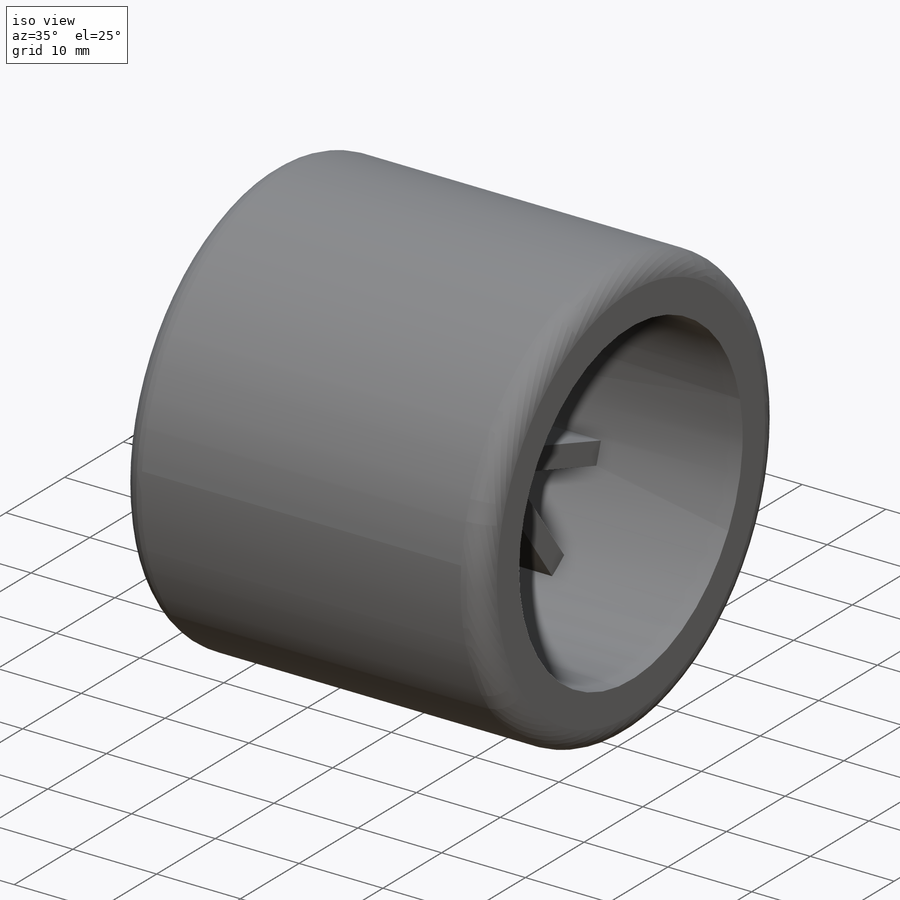
[diagram: iso view]
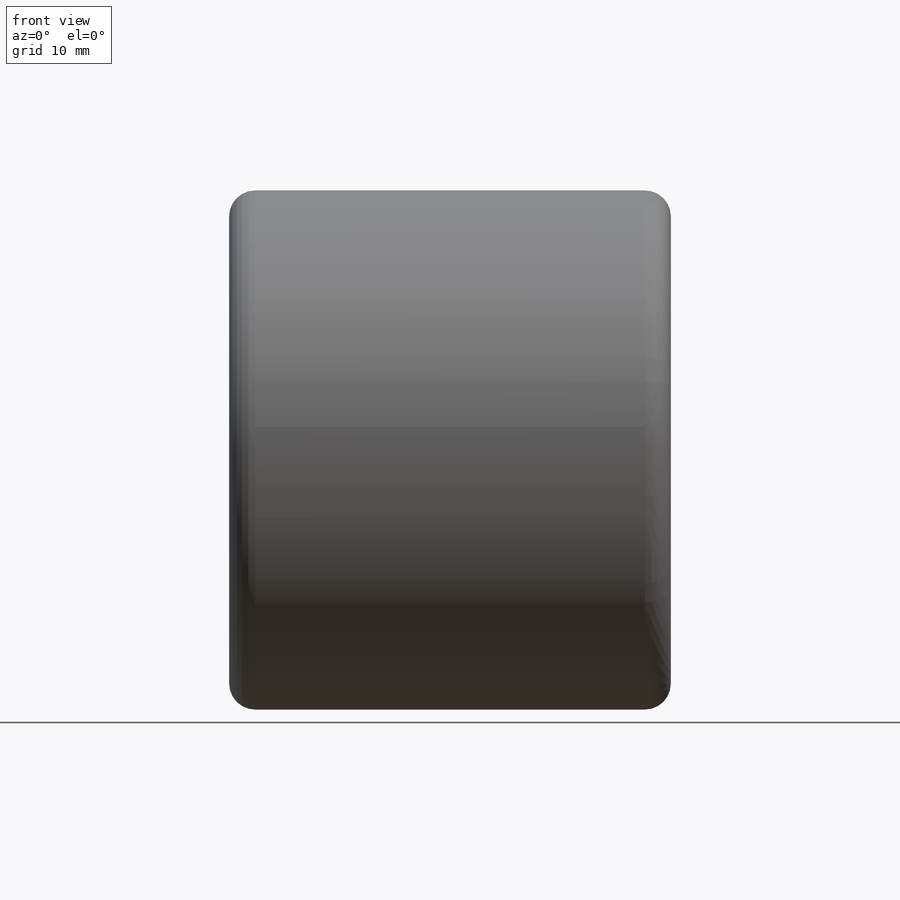
[diagram: front view]
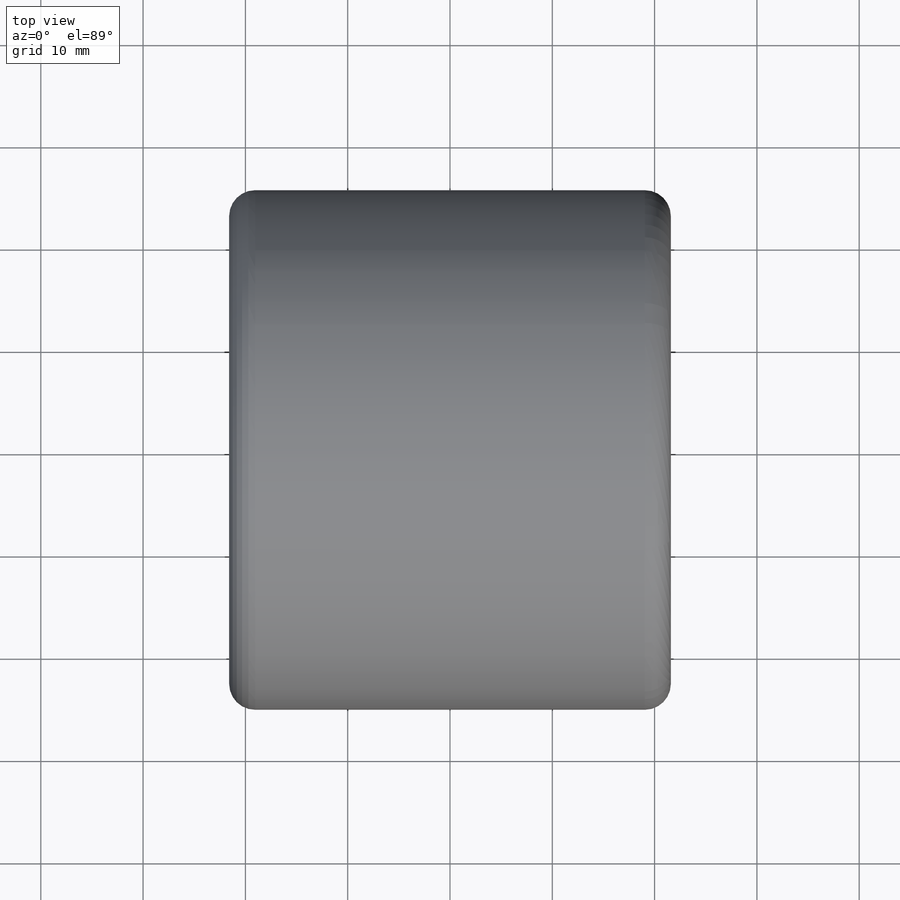
[diagram: top view]
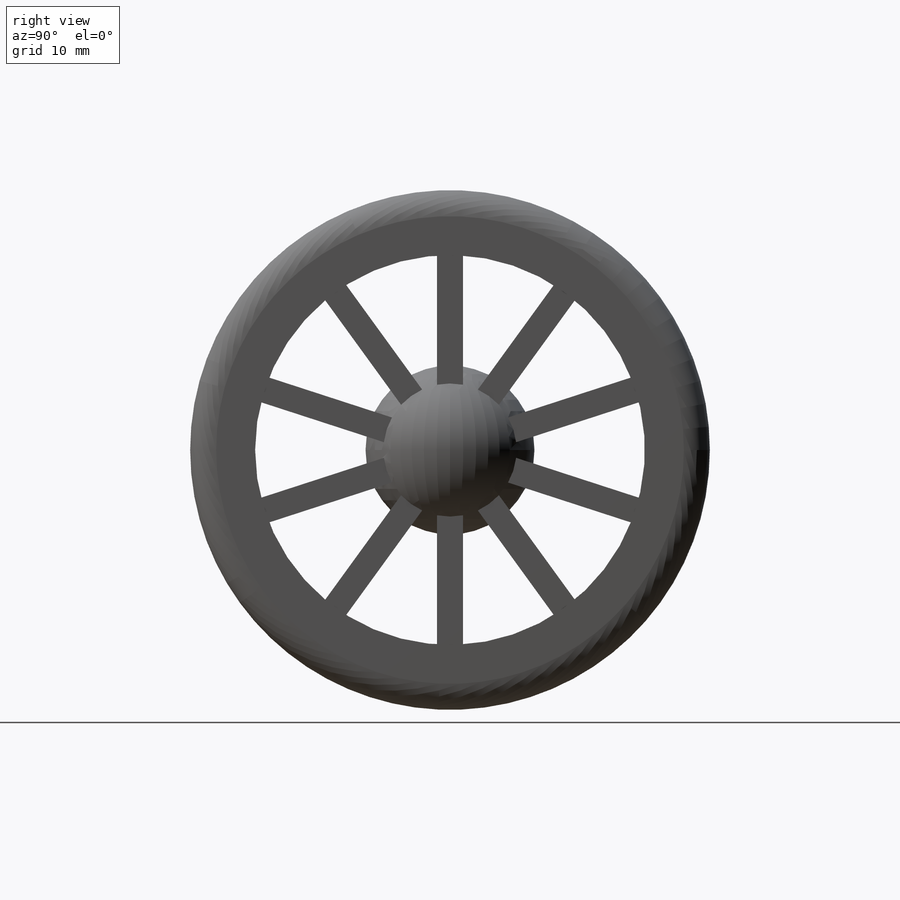
[diagram: right view]
SOLIDWORKS PART (.sldprt)
format: sldprt  version: not decoded by parser v0  size: 307,712 bytes
history: native  units: mm
features: sketch x3, extrude x2, material x1, fillet x1, revolve x1 (+13 scaffold rows collapsed)
feature tree (21):
  scaffold x13  (default folders/planes/origin — collapsed)
  material  "Material <not specified>"
  sketch  "Sketch1"  dims[D1=50.8mm D2=38.1mm]
  extrude  "Boss-Extrude1"  Depth=43.18mm
  fillet  "Fillet1"  Radius=2.54mm
  sketch  "Sketch2"  dims[D1=10.16mm D2=2.54mm D3=10.0]
  extrude  "Boss-Extrude2"  Depth=10.16mm
  sketch  "Sketch3"  dims[D1=16.51mm]
  revolve  "Revolve1"  Angle=360deg
decode coverage: 7 of 7 modeling features carry decoded parameters
note: suppression state not decoded; provenance and decode notes live in map.json
